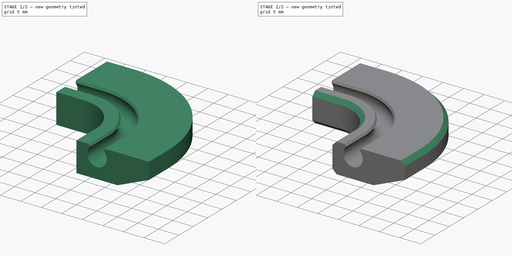
[diagram: build sequence overview — one tinted view per stage of 2, left to right]
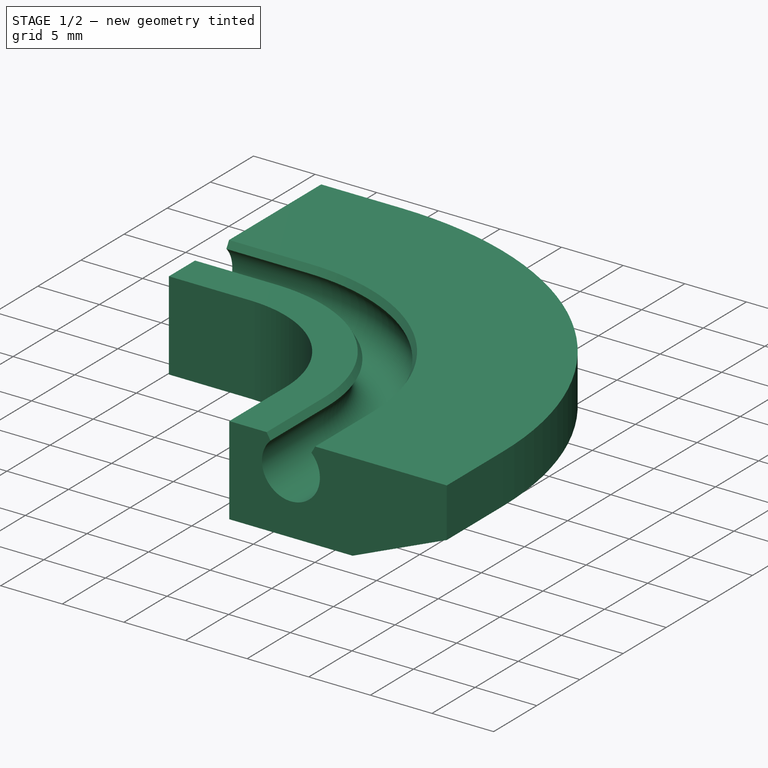
[diagram: stage 1 of 2 — iso view after this stage's code; geometry added in this stage tinted green]
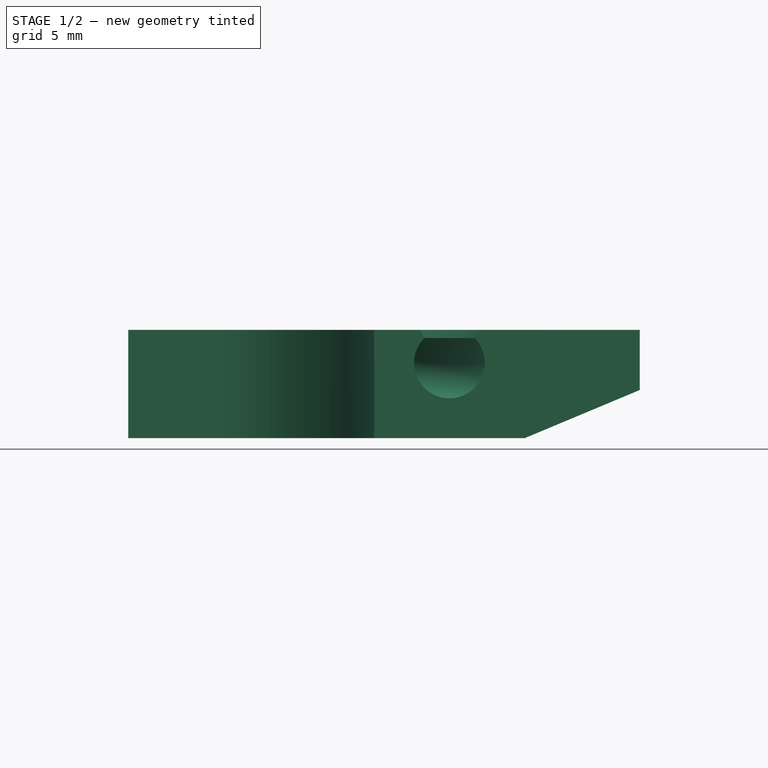
[diagram: stage 1 of 2 — front view after this stage's code; geometry added in this stage tinted green]
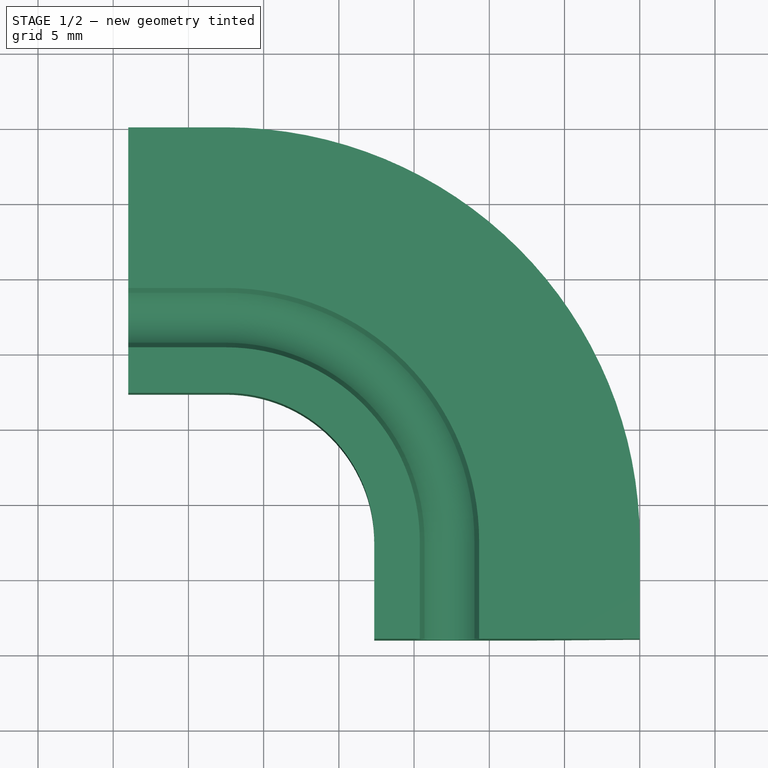
[diagram: stage 1 of 2 — top view after this stage's code; geometry added in this stage tinted green]
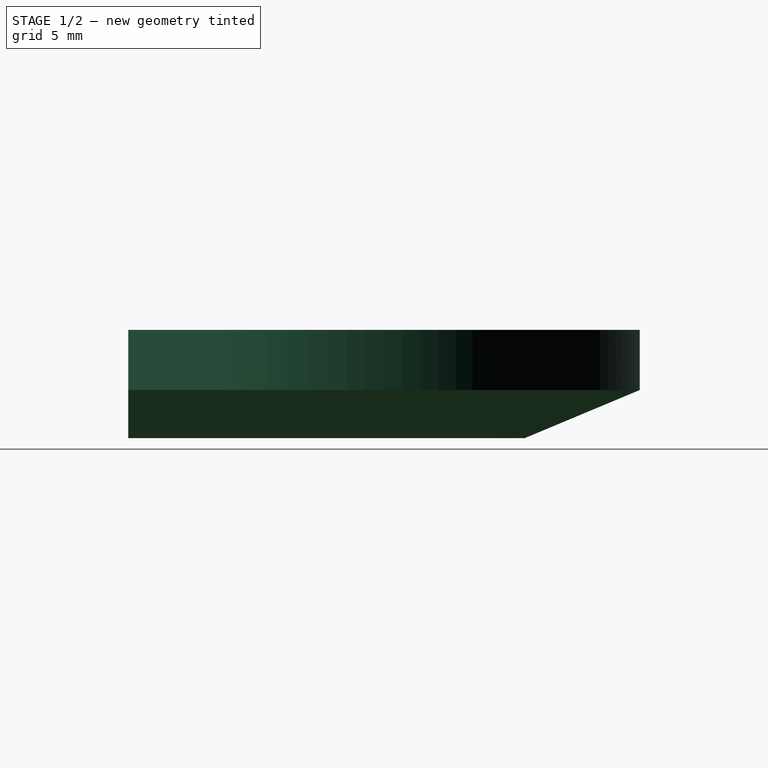
[diagram: stage 1 of 2 — right view after this stage's code; geometry added in this stage tinted green]
FCSTD DOCUMENT  (FreeCAD 2021.717R24301 +3627 (Git))
Label: basket corners
License: All rights reserved
LicenseURL: http://en.wikipedia.org/wiki/All_rights_reserved
objects: Sketcher::SketchObject×2, PartDesign::AdditivePipe×1, PartDesign::Chamfer×1, PartDesign::Body×1
note: 9 computed .brp shape members not serialized (recipe doc carries the construction recipe); baked Part::Feature solids carry a one-line shape summary decoded from their .brp

FEATURE [Sketcher::SketchObject] Sketch
  FullyConstrained = true
  MapMode = 5
  Support = -> [XY_Plane]
  sketch-geometry (3):
    g0: ArcOfCircle CenterX=-12.5 CenterY=-12.5 CenterZ=0 NormalX=0 NormalY=0 NormalZ=1 AngleXU=0 Radius=12.5 StartAngle=0 EndAngle=1.5708
    g1: LineSegment StartX=0 StartY=-12.5 StartZ=0 EndX=0 EndY=-19 EndZ=0
    g2: LineSegment StartX=-12.5 StartY=0 StartZ=0 EndX=-19 EndY=0 EndZ=0
  constraints (11):
    c: PointOnObject(g0,g-1)
    c: PointOnObject(g0,g-2)
    c: Horizontal(g0,g0)
    c: Vertical(g0,g0)
    c: Coincident(g1,g0)
    c: PointOnObject(g1,g-2)
    c: Diameter(g0) = 25
    c: DistanceY(g1) = -19
    c: Coincident(g2,g0)
    c: PointOnObject(g2,g-1)
    c: DistanceX(g2) = -19
FEATURE [Sketcher::SketchObject] Sketch001
  AttachmentOffset = pos=(0,0,-19) rot=(0,0,1;0rad)
  FullyConstrained = true
  MapMode = 5
  Placement = pos=(0,-19,-4.2e-15) rot=(0,0.707107,0.707107;3.14159rad)
  Support = -> [XZ_Plane]
  sketch-geometry (13):
    g0: ArcOfCircle [constr] CenterX=-2.35 CenterY=0 CenterZ=0 NormalX=0 NormalY=0 NormalZ=1 AngleXU=0 Radius=2.35 StartAngle=1.93002 EndAngle=7.49476
    g1: LineSegment StartX=2.65 StartY=2.2 StartZ=0 EndX=2.65 EndY=-5 EndZ=0
    g2: LineSegment StartX=-15 StartY=-1.8 StartZ=0 EndX=-15 EndY=2.2 EndZ=0
    g3: LineSegment [constr] StartX=-15 StartY=2.2 StartZ=0 EndX=-3.17614 EndY=2.2 EndZ=0
    g4: LineSegment [constr] StartX=-1.52386 StartY=2.2 StartZ=0 EndX=2.65 EndY=2.2 EndZ=0
    g5: LineSegment StartX=2.65 StartY=-5 StartZ=0 EndX=-7.35 EndY=-5 EndZ=0
    g6: LineSegment StartX=-15 StartY=-1.8 StartZ=0 EndX=-7.35 EndY=-5 EndZ=0
    g7: LineSegment StartX=-4.32249 StartY=2.2 StartZ=0 EndX=-4.0117 EndY=1.6617 EndZ=0
    g8: LineSegment StartX=-0.377512 StartY=2.2 StartZ=0 EndX=-0.688299 EndY=1.6617 EndZ=0
    g9: LineSegment [constr] StartX=-2.35 StartY=0 StartZ=0 EndX=-0.688299 EndY=1.6617 EndZ=0
    g10: LineSegment StartX=2.65 StartY=2.2 StartZ=0 EndX=-0.377512 EndY=2.2 EndZ=0
    g11: LineSegment StartX=-4.32249 StartY=2.2 StartZ=0 EndX=-15 EndY=2.2 EndZ=0
    g12: ArcOfCircle CenterX=-2.35 CenterY=0 CenterZ=0 NormalX=0 NormalY=0 NormalZ=1 AngleXU=0 Radius=2.35 StartAngle=2.35619 EndAngle=7.06858
  constraints (37):
    c: PointOnObject(g0,g-1)
    c: PointOnObject(g-1,g0)
    c: Diameter(g0) = 4.7
    c: Vertical(g2)
    c: DistanceX(g2) = -15
    c: Horizontal(g3)
    c: DistanceY(g4) = 2.2
    c: Coincident(g1,g4)
    c: Coincident(g2,g3)
    c: Coincident(g3,g0)
    c: Coincident(g4,g0)
    c: Tangent(g3,g4)
    c: DistanceY(g1) = -5
    c: DistanceX(g0,g1) = 5
    c: Vertical(g1)
    c: Coincident(g5,g1)
    c: Horizontal(g5)
    c: Coincident(g6,g2)
    c: Coincident(g6,g5)
    c: DistanceX(g5,g5) = 10
    c: DistanceY(g2,g2) = 4
    c: PointOnObject(g7,g3)
    c: PointOnObject(g7,g0)
    c: PointOnObject(g8,g4)
    c: Angle(g8) = -2.0944
    c: Angle(g7) = -1.0472
    c: Coincident(g9,g0)
    c: Coincident(g9,g8)
    c: Angle(g9) = 0.785398
    c: Coincident(g10,g1)
    c: Coincident(g10,g8)
    c: Coincident(g11,g7)
    c: Coincident(g11,g2)
    c: Coincident(g12,g0)
    c: Coincident(g12,g8)
    c: Coincident(g12,g7)
    c: Equal(g8,g7)
FEATURE [PartDesign::AdditivePipe] AdditivePipe
  AuxilleryCurvelinear = true
  AuxillerySpineTangent = false
  Binormal = (0,0,0)
  ClaimChildren = false
  Fit = 0
  FitJoin = 0
  InnerFit = 0
  InnerFitJoin = 0
  Mode = 0
  NewSolid = false
  Placement = pos=(0,0,0) rot=(1,0,0;1.5708rad)
  Profile = -> Sketch001
  Spine = -> Sketch
  SpineTangent = false
  Suppress = false
  Transformation = 0
  Transition = 0
  _ProfileBasedVersion = 0
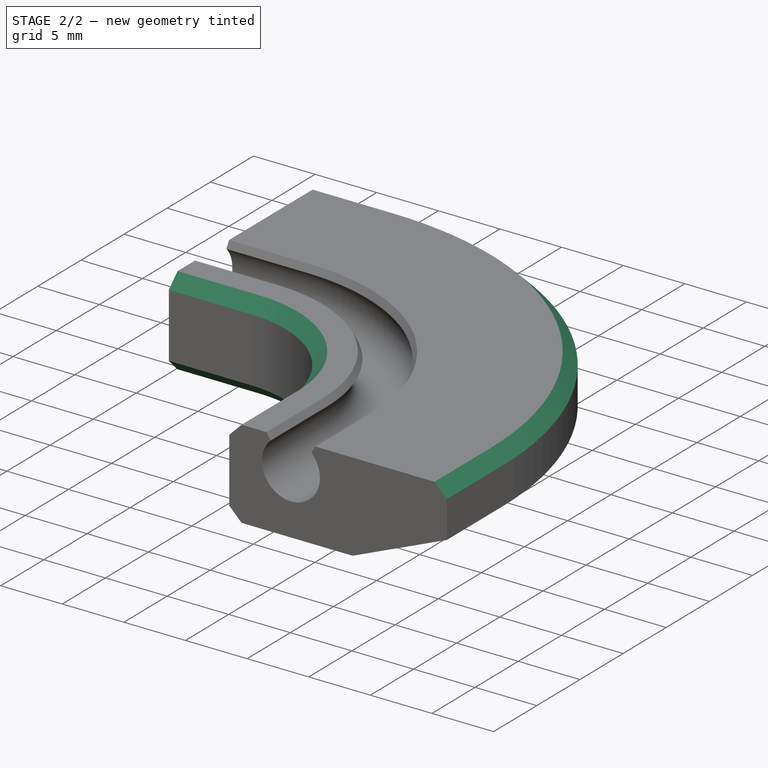
[diagram: stage 2 of 2 — iso view after this stage's code; geometry added in this stage tinted green]
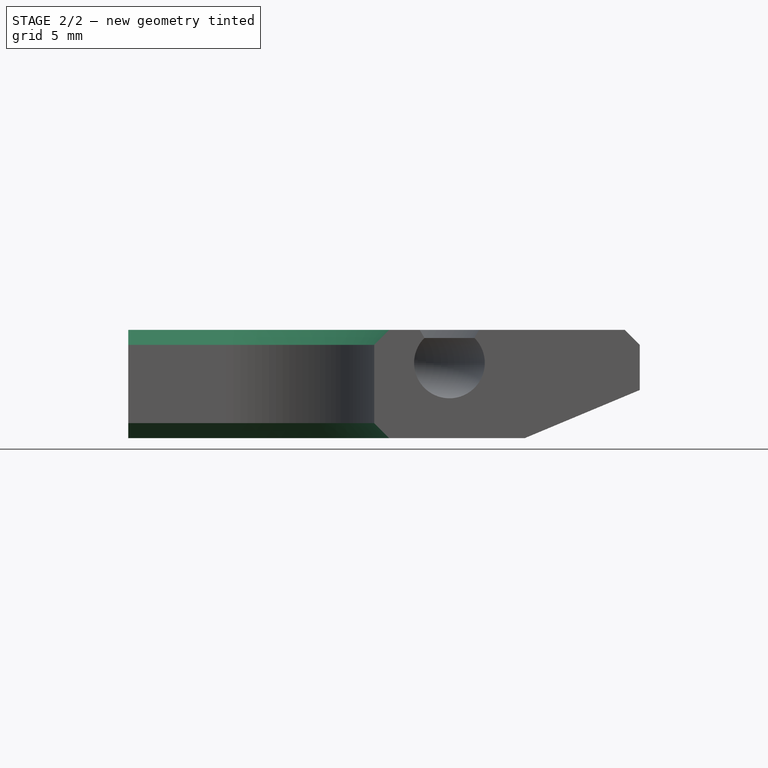
[diagram: stage 2 of 2 — front view after this stage's code; geometry added in this stage tinted green]
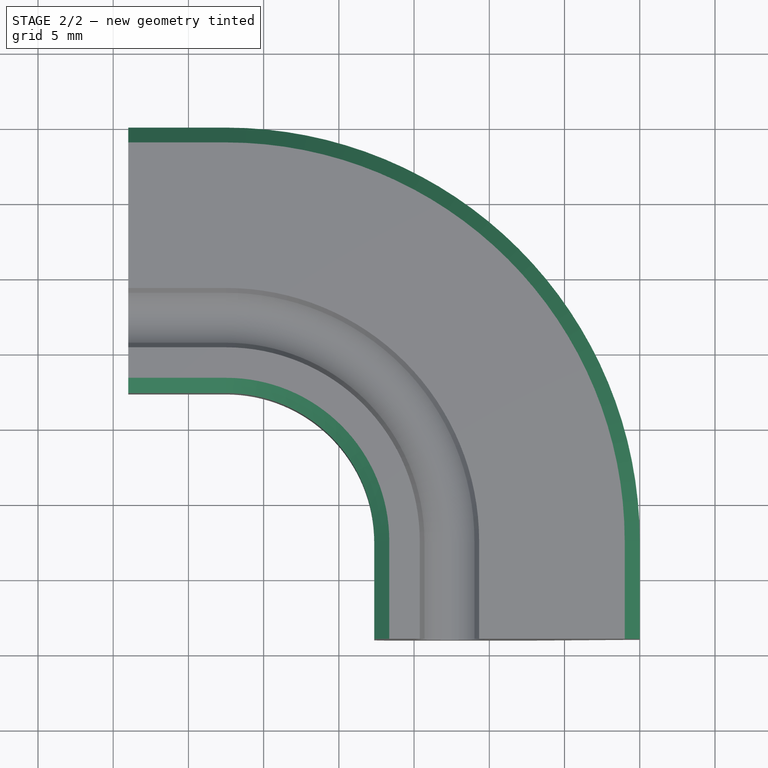
[diagram: stage 2 of 2 — top view after this stage's code; geometry added in this stage tinted green]
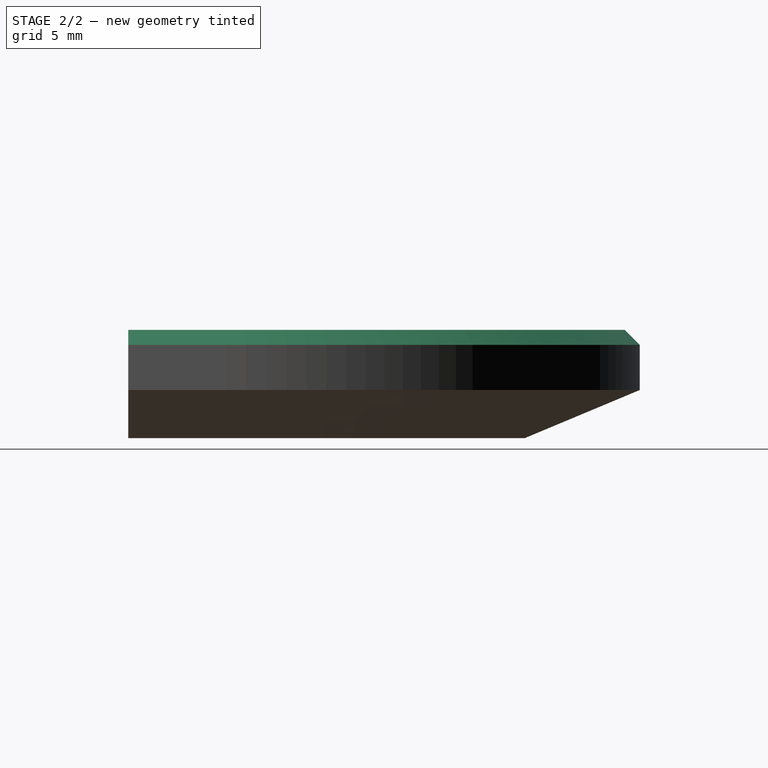
[diagram: stage 2 of 2 — right view after this stage's code; geometry added in this stage tinted green]
FEATURE [PartDesign::Chamfer] Chamfer
  Angle = 45
  Base = -> AdditivePipe [Edge10,Edge11,Edge21]
  BaseFeature = -> AdditivePipe
  ChamferType = 0
  FlipDirection = false
  NewSolid = false
  Placement = pos=(0,0,0) rot=(1,0,0;1.5708rad)
  Size = 1
  Size2 = 1
  SupportTransform = false
  Suppress = false
FEATURE [PartDesign::Body] Body
  AutoGroupSolids = false
  ExportMode = 0
  Group = -> [Sketch,Sketch001,AdditivePipe,Chamfer]
  Origin = -> Origin
  Tip = -> Chamfer
  _ExportChildren = -> [AdditivePipe,Chamfer]
  _GroupVersion = 1
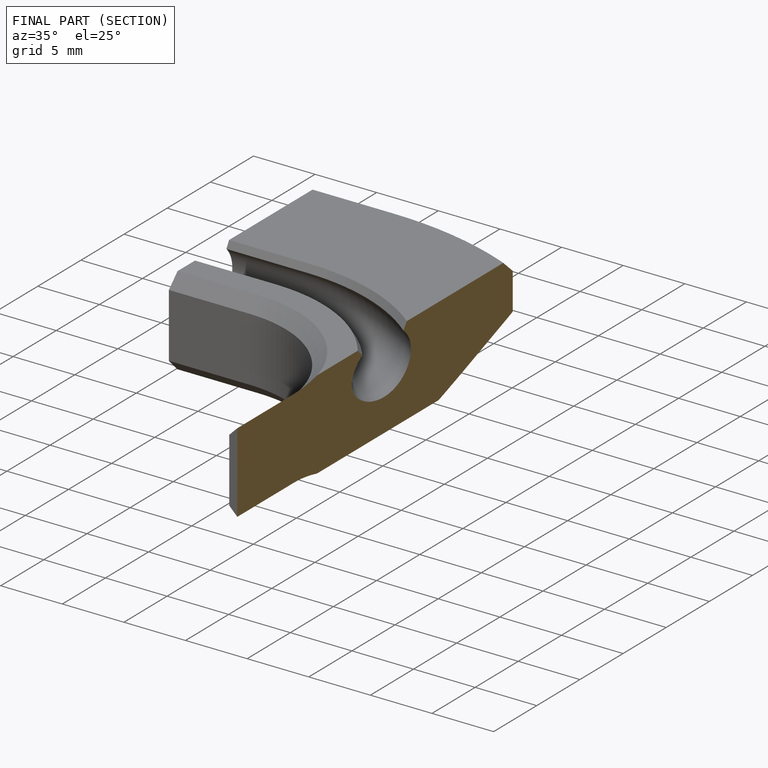
[diagram: finished part — half-section view (interior)]
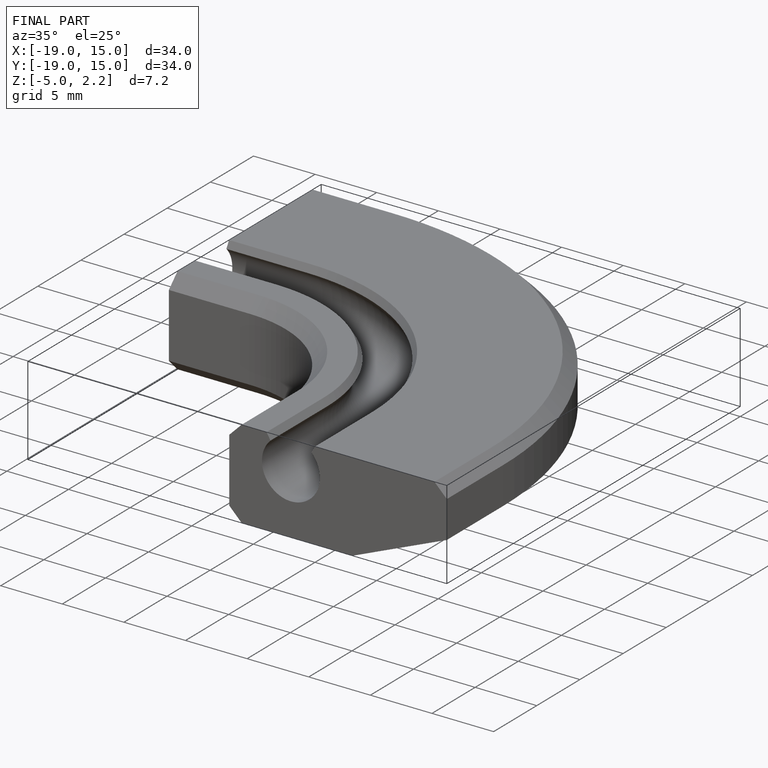
[diagram: finished part — iso view with bounding-box wireframe]
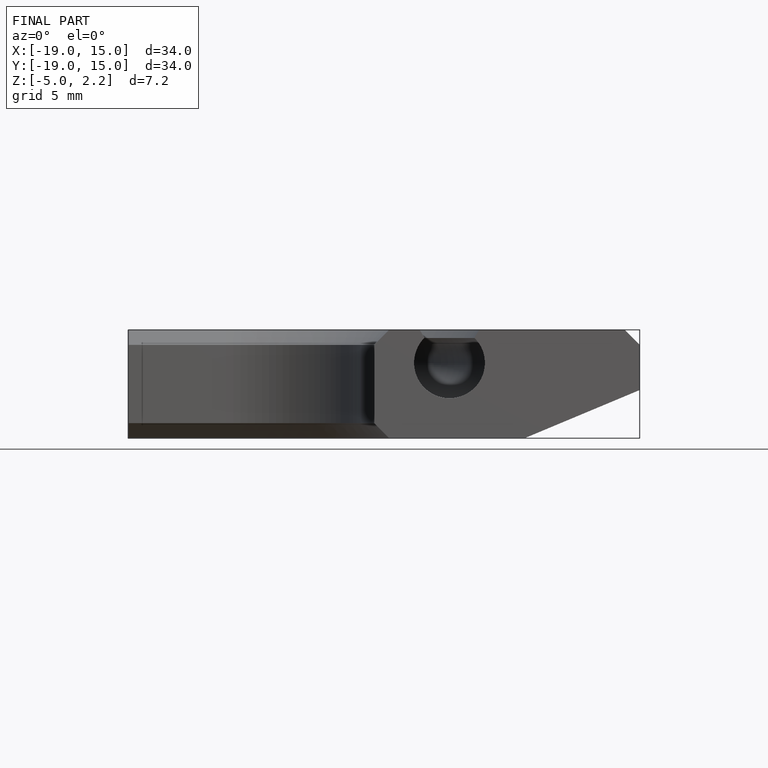
[diagram: finished part — front view with bounding-box wireframe]
